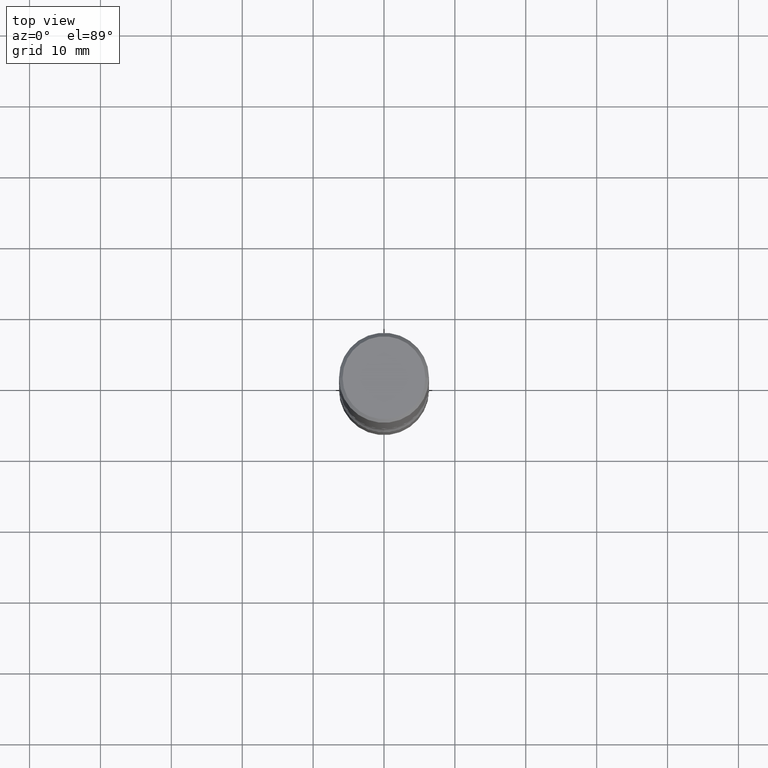
[diagram: clean part render]
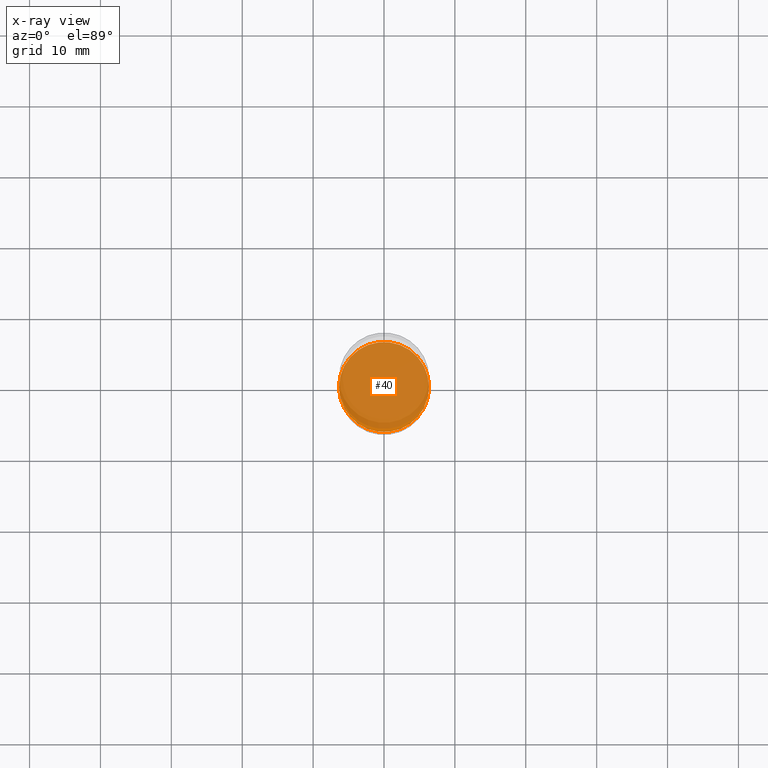
[diagram: x-ray — body ghosted, one internal face saturated and labeled with its STEP entity id]
A machine part, top view, then the same camera in x-ray: the body is ghosted and one INTERNAL B-rep face — a face not visible from any outside direction — is saturated and labeled: STEP entity #40.
In plain terms, the highlighted planar face has unit normal (0, -0, -1).
Its self-contained STEP definition (entity closure, byte-faithful):
#4 = ORIENTED_EDGE ( 'NONE', *, *, #347, .T. ) ;
#14 = PLANE ( 'NONE',  #129 ) ;
#19 = CARTESIAN_POINT ( 'NONE',  ( -0.2500000000000002776, -1.033908340638546235E-14, -3.000000000000000444 ) ) ;
#35 = AXIS2_PLACEMENT_3D ( 'NONE', #277, #407, #183 ) ;
#40 = ADVANCED_FACE ( 'NONE', ( #149 ), #14, .F. ) ;
#57 = DIRECTION ( 'NONE',  ( -1.000000000000000000, 6.982962677686265922E-15, -4.876176775795935793E-29 ) ) ;
#78 = EDGE_LOOP ( 'NONE', ( #4, #218 ) ) ;
#129 = AXIS2_PLACEMENT_3D ( 'NONE', #376, #287, #57 ) ;
#149 = FACE_OUTER_BOUND ( 'NONE', #78, .T. ) ;
#183 = DIRECTION ( 'NONE',  ( 1.000000000000000000, -6.982962677686270655E-15, 0.000000000000000000 ) ) ;
#202 = DIRECTION ( 'NONE',  ( -2.445468806185136597E-29, 3.491481338843145583E-15, 1.000000000000000000 ) ) ;
#218 = ORIENTED_EDGE ( 'NONE', *, *, #389, .T. ) ;
#277 = CARTESIAN_POINT ( 'NONE',  ( 7.336406418555409790E-29, -1.047444401652943635E-14, -3.000000000000000444 ) ) ;
#287 = DIRECTION ( 'NONE',  ( 2.438088387897960049E-29, -3.491481338843145188E-15, -1.000000000000000000 ) ) ;
#288 = CIRCLE ( 'NONE', #507, 0.2500000000000002776 ) ;
#320 = CIRCLE ( 'NONE', #35, 0.2500000000000002776 ) ;
#327 = DIRECTION ( 'NONE',  ( 1.000000000000000000, -6.982962677686270655E-15, 0.000000000000000000 ) ) ;
#347 = EDGE_CURVE ( 'NONE', #423, #403, #288, .T. ) ;
#376 = CARTESIAN_POINT ( 'NONE',  ( 7.336406418555409790E-29, -1.047444401652943635E-14, -3.000000000000000444 ) ) ;
#389 = EDGE_CURVE ( 'NONE', #403, #423, #320, .T. ) ;
#403 = VERTEX_POINT ( 'NONE', #19 ) ;
#407 = DIRECTION ( 'NONE',  ( -2.445468806185136597E-29, 3.491481338843145583E-15, 1.000000000000000000 ) ) ;
#409 = CARTESIAN_POINT ( 'NONE',  ( 0.2500000000000002776, -1.222018468595100619E-14, -3.000000000000000444 ) ) ;
#423 = VERTEX_POINT ( 'NONE', #409 ) ;
#507 = AXIS2_PLACEMENT_3D ( 'NONE', #510, #202, #327 ) ;
#510 = CARTESIAN_POINT ( 'NONE',  ( 7.336406418555409790E-29, -1.047444401652943635E-14, -3.000000000000000444 ) ) ;